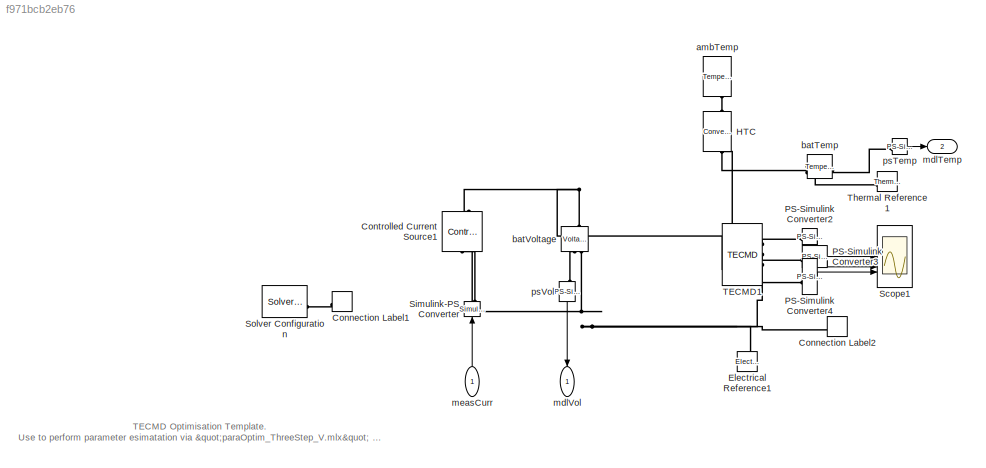
MODEL slx_f971bcb2eb76
KIND model
CONFIG AbsTol = 1e-3
CONFIG EnableMultiTasking = off
CONFIG FixedStep = 1
CONFIG MaxStep = auto
CONFIG MinStep = auto
CONFIG RelTol = 1e-3
CONFIG SampleTimeConstraint = Unconstrained
CONFIG SolverName = daessc
CONFIG StartTime = 0.0
CONFIG StopTime = 7192.4000005722046
BLOCK [ConnectionLabel] Connection Label1
  Label = solver
BLOCK [ConnectionLabel] Connection Label2
  Label = solver
  NameLocation = top
BLOCK [Reference] Controlled Current Source1  REF=fl_lib/Electrical/Electrical Sources/Controlled Current
Source
  NameLocation = right
  SourceBlock = fl_lib/Electrical/Electrical Sources/Controlled Current\nSource
  SourceType = Controlled Current\nSource
BLOCK [Reference] Electrical Reference1  REF=fl_lib/Electrical/Electrical Elements/Electrical Reference
  NameLocation = right
  SourceBlock = fl_lib/Electrical/Electrical Elements/Electrical Reference
  SourceType = Electrical Reference
BLOCK [Reference] HTC  REF=fl_lib/Thermal/Thermal Elements/Convective Heat
Transfer
  NameLocation = right
  SourceBlock = fl_lib/Thermal/Thermal Elements/Convective Heat\nTransfer
  SourceType = Convective Heat\nTransfer
BLOCK [Reference] PS-Simulink Converter2  REF=nesl_utility/PS-Simulink
Converter
  SourceBlock = nesl_utility/PS-Simulink\nConverter
  SourceType = PS-Simulink\nConverter
BLOCK [Reference] PS-Simulink Converter3  REF=nesl_utility/PS-Simulink
Converter
  SourceBlock = nesl_utility/PS-Simulink\nConverter
  SourceType = PS-Simulink\nConverter
BLOCK [Reference] PS-Simulink Converter4  REF=nesl_utility/PS-Simulink
Converter
  SourceBlock = nesl_utility/PS-Simulink\nConverter
  SourceType = PS-Simulink\nConverter
BLOCK [Scope] Scope1
  Floating = off
  NumInputPorts = 3
  ScopeSpecificationString = Simulink.scopes.TimeScopeBlockCfg('CurrentConfiguration', extmgr.ConfigurationSet(extmgr.Configuration('Core','General UI',true),extmgr.Configuration('Core','Source UI',true),extmgr.Configuration('Sources','WiredSimulink',true),extmgr.Configuration('Visuals','Time Domain',true,'SerializedDisplays',{struct('MinYLimReal','-0.00000000000000046','MaxYLimReal','0.00000000000000045','YLabelReal','','Min...<+2869ch>
BLOCK [Reference] Simulink-PS Converter  REF=nesl_utility/Simulink-PS
Converter
  NameLocation = right
  SourceBlock = nesl_utility/Simulink-PS\nConverter
  SourceType = Simulink-PS\nConverter
BLOCK [Reference] Solver Configuration  REF=nesl_utility/Solver
Configuration
  SourceBlock = nesl_utility/Solver\nConfiguration
  SourceType = Solver\nConfiguration
BLOCK [Reference] TECMD1  REF=BatteryLibrary_lib/Models/TECMD
  SourceBlock = BatteryLibrary_lib/Models/TECMD
  SourceType = TECMD
BLOCK [Reference] Thermal Reference1  REF=fl_lib/Thermal/Thermal Elements/Thermal Reference
  NameLocation = top
  SourceBlock = fl_lib/Thermal/Thermal Elements/Thermal Reference
  SourceType = Thermal Reference
BLOCK [Reference] ambTemp  REF=fl_lib/Thermal/Thermal Sources/Temperature Source
  NameLocation = right
  SourceBlock = fl_lib/Thermal/Thermal Sources/Temperature Source
  SourceType = Temperature Source
BLOCK [Reference] batTemp  REF=fl_lib/Thermal/Thermal Sensors/Temperature Sensor
  NameLocation = top
  SourceBlock = fl_lib/Thermal/Thermal Sensors/Temperature Sensor
  SourceType = Temperature Sensor
BLOCK [Reference] batVoltage  REF=fl_lib/Electrical/Electrical Sensors/Voltage Sensor
  NameLocation = right
  SourceBlock = fl_lib/Electrical/Electrical Sensors/Voltage Sensor
  SourceType = Voltage Sensor
BLOCK [Outport] mdlTemp
  Port = 2
BLOCK [Outport] mdlVol
  NameLocation = left
BLOCK [Inport] measCurr
  NameLocation = left
BLOCK [Reference] psTemp  REF=nesl_utility/PS-Simulink
Converter
  NameLocation = top
  SourceBlock = nesl_utility/PS-Simulink\nConverter
  SourceType = PS-Simulink\nConverter
BLOCK [Reference] psVol  REF=nesl_utility/PS-Simulink
Converter
  NameLocation = left
  SourceBlock = nesl_utility/PS-Simulink\nConverter
  SourceType = PS-Simulink\nConverter
ANNOTATION (root): TECMD Optimisation Template. Use to perform parameter esimatation via "paraOptim_ThreeStep_V.mlx" file
LINE PS-Simulink Converter2:1 -> Scope1:1
LINE PS-Simulink Converter3:1 -> Scope1:2
LINE PS-Simulink Converter4:1 -> Scope1:3
LINE measCurr:1 -> Simulink-PS Converter:1
LINE psTemp:1 -> mdlTemp:1
LINE psVol:1 -> mdlVol:1
PLINE Connection Label1:LConn1 -- Solver Configuration:RConn1
PNET net1: Connection Label2:LConn1 -- Controlled Current Source1:RConn2 -- Electrical Reference1:LConn1 -- TECMD1:RConn4 -- batVoltage:RConn2
PNET net2: Controlled Current Source1:LConn1 -- TECMD1:LConn2 -- batVoltage:LConn1
PLINE Controlled Current Source1:RConn1 -- Simulink-PS Converter:RConn1
PNET net3: HTC:LConn1 -- TECMD1:LConn1 -- batTemp:LConn1
PLINE HTC:RConn1 -- ambTemp:LConn1
PLINE PS-Simulink Converter2:LConn1 -- TECMD1:RConn1
PLINE PS-Simulink Converter3:LConn1 -- TECMD1:RConn2
PLINE PS-Simulink Converter4:LConn1 -- TECMD1:RConn3
PLINE Thermal Reference1:LConn1 -- batTemp:RConn1
PLINE batTemp:RConn2 -- psTemp:LConn1
PLINE batVoltage:RConn1 -- psVol:LConn1
note: PNET lines group multi-terminal physical nets as a canonical sorted terminal list (undirected conserving connections); 2-terminal nets keep the pairwise PLINE form
